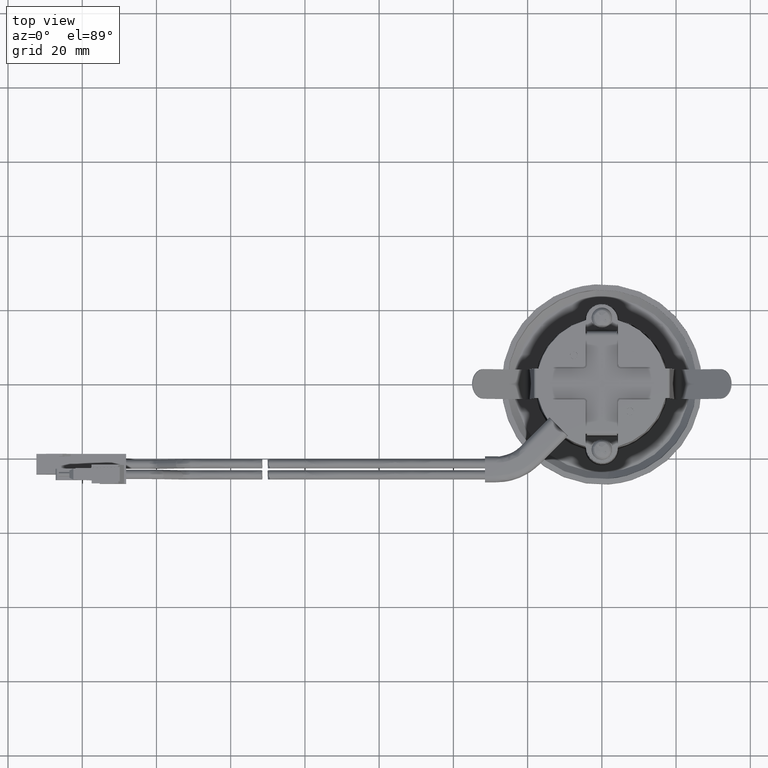
[diagram: clean part render]
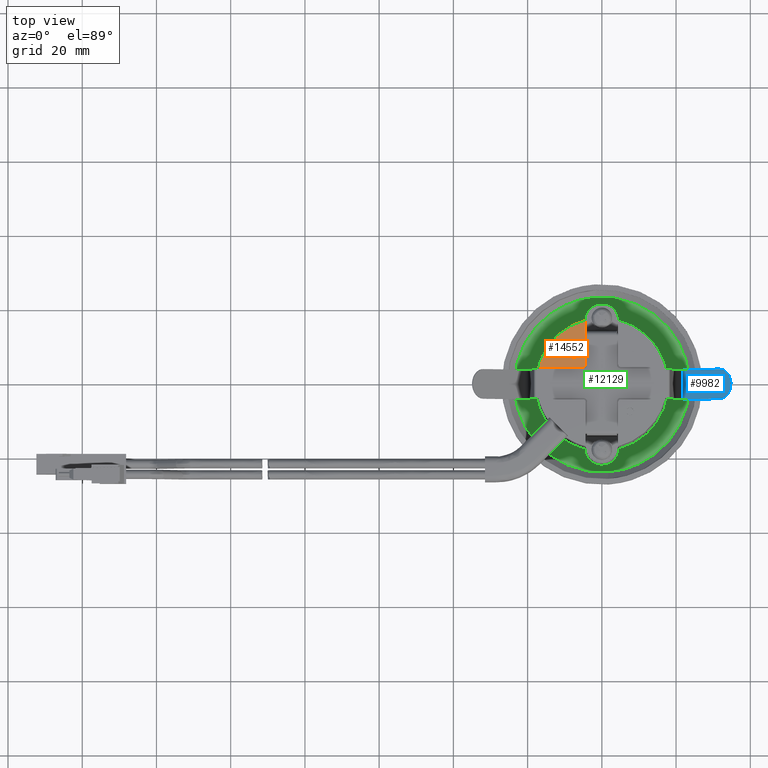
[diagram: same view with three faces highlighted in distinct colors, each labeled with its STEP entity id]
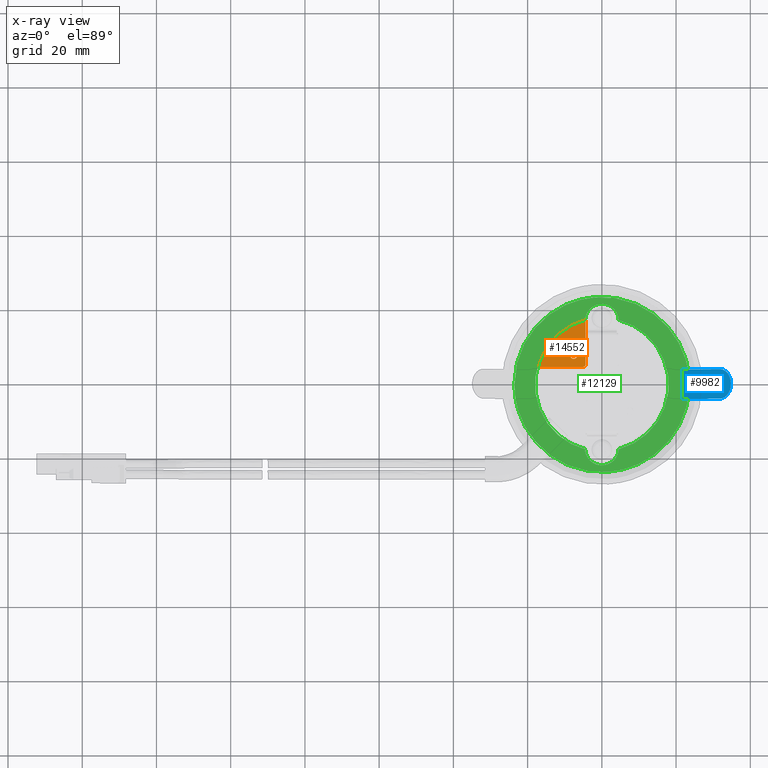
[diagram: x-ray of the same camera — body ghosted, the three highlighted faces saturated]
A machine part, top view with three faces highlighted in distinct colors.
The next image is the same camera in x-ray (body ghosted, the three faces saturated) — at least one of them is partly hidden behind the body in this view.
Their STEP definitions:

[orange] entity #14552 — the highlighted face is a freeform B-spline surface patch.
#13164=CARTESIAN_POINT('',(-4.399999999991501,5.000000000000970,21.599999999999248));
#13165=VERTEX_POINT('',#13164);
#13171=CARTESIAN_POINT('',(-4.999999999992530,4.399999999999936,21.599999999999248));
#13172=VERTEX_POINT('',#13171);
#13173=CARTESIAN_POINT('',(-4.999999999992530,4.399999999999936,21.599999999999248));
#13174=CARTESIAN_POINT('',(-4.399999999991509,4.399999999999938,21.599999999998747));
#13175=CARTESIAN_POINT('',(-4.399999999991508,5.000000000000970,21.599999999998751));
#13183=(BOUNDED_CURVE()B_SPLINE_CURVE(2,(#13173,#13174,#13175),.UNSPECIFIED.,.F.,.U.)CURVE()GEOMETRIC_REPRESENTATION_ITEM()QUASI_UNIFORM_CURVE()RATIONAL_B_SPLINE_CURVE((1.0,0.707106781186547,1.0))REPRESENTATION_ITEM(''));
#13184=EDGE_CURVE('',#13172,#13165,#13183,.T.);
#13490=CARTESIAN_POINT('',(-4.399999999991501,16.976985899317501,21.599999999999248));
#13491=VERTEX_POINT('',#13490);
#13492=CARTESIAN_POINT('',(-4.399999999991501,5.000000000000970,21.599999999999248));
#13493=CARTESIAN_POINT('',(-4.399999999991501,16.976985899317501,21.599999999999248));
#13494=QUASI_UNIFORM_CURVE('',1,(#13492,#13493),.UNSPECIFIED.,.F.,.U.);
#13495=EDGE_CURVE('',#13165,#13491,#13494,.T.);
#13533=CARTESIAN_POINT('',(-16.976985899309099,4.399999999999780,21.599999999999248));
#13534=VERTEX_POINT('',#13533);
#13535=CARTESIAN_POINT('',(-16.976985899309099,4.399999999999780,21.599999999999248));
#13536=CARTESIAN_POINT('',(-4.999999999992530,4.399999999999936,21.599999999999248));
#13537=QUASI_UNIFORM_CURVE('',1,(#13535,#13536),.UNSPECIFIED.,.F.,.U.);
#13538=EDGE_CURVE('',#13534,#13172,#13537,.T.);
#14420=CARTESIAN_POINT('',(-7.627101457603869,6.567897042375114,21.599999999998751));
#14421=VERTEX_POINT('',#14420);
#14427=CARTESIAN_POINT('',(-6.566052916317770,7.566031840689870,21.599999999998751));
#14428=VERTEX_POINT('',#14427);
#14429=CARTESIAN_POINT('',(-7.627101457603870,6.567897042375115,21.599999999998747));
#14430=CARTESIAN_POINT('',(-7.596605680494434,6.566031840689871,21.599999999998744));
#14431=CARTESIAN_POINT('',(-7.566052916317770,6.566031840689870,21.599999999998751));
#14432=CARTESIAN_POINT('',(-6.566052916317770,6.566031840689870,21.599999999998744));
#14433=CARTESIAN_POINT('',(-6.566052916317770,7.566031840689870,21.599999999998751));
#14441=(BOUNDED_CURVE()B_SPLINE_CURVE(2,(#14429,#14430,#14431,#14432,#14433),.UNSPECIFIED.,.F.,.U.)B_SPLINE_CURVE_WITH_KNOTS((3,2,3),(0.239332961939232,0.250000000000000,0.500000000000000),.UNSPECIFIED.)CURVE()GEOMETRIC_REPRESENTATION_ITEM()RATIONAL_B_SPLINE_CURVE((0.976072041024381,0.987502787548705,1.0,0.707106781186548,1.0))REPRESENTATION_ITEM(''));
#14442=EDGE_CURVE('',#14421,#14428,#14441,.T.);
#14444=CARTESIAN_POINT('',(-7.505004375031671,8.564166639004625,21.599999999998751));
#14445=VERTEX_POINT('',#14444);
#14446=CARTESIAN_POINT('',(-6.566052916317770,7.566031840689870,21.599999999998751));
#14447=CARTESIAN_POINT('',(-6.566052916317770,8.506737905942000,21.599999999998747));
#14448=CARTESIAN_POINT('',(-7.505004375031671,8.564166639004625,21.599999999998751));
#14456=(BOUNDED_CURVE()B_SPLINE_CURVE(2,(#14446,#14447,#14448),.UNSPECIFIED.,.F.,.U.)B_SPLINE_CURVE_WITH_KNOTS((3,3),(0.500000000000000,0.739332961939233),.UNSPECIFIED.)CURVE()GEOMETRIC_REPRESENTATION_ITEM()RATIONAL_B_SPLINE_CURVE((1.0,0.719603993637843,0.976072041024382))REPRESENTATION_ITEM(''));
#14457=EDGE_CURVE('',#14428,#14445,#14456,.T.);
#14489=CARTESIAN_POINT('',(-8.566052916317769,7.566031840689870,21.599999999998751));
#14490=VERTEX_POINT('',#14489);
#14491=CARTESIAN_POINT('',(-7.505004375031671,8.564166639004625,21.599999999998744));
#14492=CARTESIAN_POINT('',(-7.535500152141104,8.566031840689870,21.599999999998751));
#14493=CARTESIAN_POINT('',(-7.566052916317770,8.566031840689870,21.599999999998751));
#14494=CARTESIAN_POINT('',(-8.566052916317769,8.566031840689870,21.599999999998744));
#14495=CARTESIAN_POINT('',(-8.566052916317769,7.566031840689870,21.599999999998751));
#14503=(BOUNDED_CURVE()B_SPLINE_CURVE(2,(#14491,#14492,#14493,#14494,#14495),.UNSPECIFIED.,.F.,.U.)B_SPLINE_CURVE_WITH_KNOTS((3,2,3),(0.739332961939232,0.750000000000000,1.0),.UNSPECIFIED.)CURVE()GEOMETRIC_REPRESENTATION_ITEM()RATIONAL_B_SPLINE_CURVE((0.976072041024381,0.987502787548705,1.0,0.707106781186548,1.0))REPRESENTATION_ITEM(''));
#14504=EDGE_CURVE('',#14445,#14490,#14503,.T.);
#14506=CARTESIAN_POINT('',(-8.566052916317769,7.566031840689870,21.599999999998751));
#14507=CARTESIAN_POINT('',(-8.566052916317769,6.625325775437743,21.599999999998737));
#14508=CARTESIAN_POINT('',(-7.627101457603871,6.567897042375114,21.599999999998751));
#14516=(BOUNDED_CURVE()B_SPLINE_CURVE(2,(#14506,#14507,#14508),.UNSPECIFIED.,.F.,.U.)B_SPLINE_CURVE_WITH_KNOTS((3,3),(0.0,0.239332961939232),.UNSPECIFIED.)CURVE()GEOMETRIC_REPRESENTATION_ITEM()RATIONAL_B_SPLINE_CURVE((1.0,0.719603993637843,0.976072041024381))REPRESENTATION_ITEM(''));
#14517=EDGE_CURVE('',#14490,#14421,#14516,.T.);
#14523=CARTESIAN_POINT('',(-17.605206320603379,17.605206320611789,21.599999999998751));
#14524=CARTESIAN_POINT('',(-3.771779241356176,17.605206320611789,21.599999999998751));
#14525=CARTESIAN_POINT('',(-17.605206320603379,3.771779241364449,21.599999999998751));
#14526=CARTESIAN_POINT('',(-3.771779241356176,3.771779241364449,21.599999999998751));
#14527=B_SPLINE_SURFACE_WITH_KNOTS('',1,1,((#14523,#14525),(#14524,#14526)),.UNSPECIFIED.,.F.,.F.,.U.,(2,2),(2,2),(0.0,13.833427079247199),(0.0,13.833427079247340),.UNSPECIFIED.);
#14528=ORIENTED_EDGE('',*,*,#13538,.T.);
#14529=ORIENTED_EDGE('',*,*,#13184,.T.);
#14530=ORIENTED_EDGE('',*,*,#13495,.T.);
#14531=CARTESIAN_POINT('',(-4.399999999991501,16.976985899317501,21.599999999999248));
#14532=CARTESIAN_POINT('',(-14.388279604715807,14.388279604724136,21.599999999998751));
#14533=CARTESIAN_POINT('',(-16.976985899309131,4.399999999999800,21.599999999998751));
#14541=(BOUNDED_CURVE()B_SPLINE_CURVE(2,(#14531,#14532,#14533),.UNSPECIFIED.,.F.,.U.)CURVE()GEOMETRIC_REPRESENTATION_ITEM()QUASI_UNIFORM_CURVE()RATIONAL_B_SPLINE_CURVE((1.0,0.861893892314501,1.0))REPRESENTATION_ITEM(''));
#14542=EDGE_CURVE('',#13491,#13534,#14541,.T.);
#14543=ORIENTED_EDGE('',*,*,#14542,.T.);
#14544=EDGE_LOOP('',(#14528,#14529,#14530,#14543));
#14545=FACE_OUTER_BOUND('',#14544,.T.);
#14546=ORIENTED_EDGE('',*,*,#14457,.F.);
#14547=ORIENTED_EDGE('',*,*,#14442,.F.);
#14548=ORIENTED_EDGE('',*,*,#14517,.F.);
#14549=ORIENTED_EDGE('',*,*,#14504,.F.);
#14550=EDGE_LOOP('',(#14546,#14547,#14548,#14549));
#14551=FACE_BOUND('',#14550,.T.);
#14552=ADVANCED_FACE('',(#14545,#14551),#14527,.F.);

[blue] entity #9982 — the highlighted face is a freeform B-spline surface patch.
#8625=CARTESIAN_POINT('',(31.719833919201349,-3.999999999999800,12.186715824174140));
#8626=VERTEX_POINT('',#8625);
#8632=CARTESIAN_POINT('',(21.670459354844802,-3.999999999999780,3.754289333660160));
#8633=VERTEX_POINT('',#8632);
#8634=CARTESIAN_POINT('',(31.719833919201349,-3.999999999999800,12.186715824174140));
#8635=CARTESIAN_POINT('',(21.670459354844802,-3.999999999999780,3.754289333660160));
#8636=QUASI_UNIFORM_CURVE('',1,(#8634,#8635),.UNSPECIFIED.,.F.,.U.);
#8637=EDGE_CURVE('',#8626,#8633,#8636,.T.);
#9207=CARTESIAN_POINT('',(31.719833919201349,3.999999999998835,12.186715824174140));
#9208=VERTEX_POINT('',#9207);
#9209=CARTESIAN_POINT('',(31.719833919201349,-3.999999999999800,12.186715824174140));
#9210=CARTESIAN_POINT('',(32.045715037820372,-4.000203655979063,12.460162550614990));
#9211=CARTESIAN_POINT('',(32.697420480178359,-3.863042583480659,13.007008346933871));
#9212=CARTESIAN_POINT('',(33.463677517789357,-3.344167225349739,13.649974344580169));
#9213=CARTESIAN_POINT('',(34.023528434030460,-2.681425522662795,14.119745041912459));
#9214=CARTESIAN_POINT('',(34.466981278110190,-1.880980186307660,14.491846159824140));
#9215=CARTESIAN_POINT('',(34.732292499070930,-0.949016213472065,14.714468707479570));
#9216=CARTESIAN_POINT('',(34.806217488317067,0.032747247607722,14.776499138690831));
#9217=CARTESIAN_POINT('',(34.722966077353718,1.014486391139825,14.706642910456299));
#9218=CARTESIAN_POINT('',(34.430783078085589,1.968445020783507,14.461472263534461));
#9219=CARTESIAN_POINT('',(33.972435089846464,2.754452953827790,14.076872635651890));
#9220=CARTESIAN_POINT('',(33.457443810093153,3.334398451075207,13.644743642751431));
#9221=CARTESIAN_POINT('',(32.722379811053557,3.847427291620541,13.027951712265841));
#9222=CARTESIAN_POINT('',(32.095910725630020,4.000442337063271,12.502281733742420));
#9223=CARTESIAN_POINT('',(31.719833919201349,3.999999999998835,12.186715824174140));
#9224=B_SPLINE_CURVE_WITH_KNOTS('',3,(#9209,#9210,#9211,#9212,#9213,#9214,#9215,#9216,#9217,#9218,#9219,#9220,#9221,#9222,#9223),.UNSPECIFIED.,.F.,.U.,(4,1,1,1,1,1,1,1,1,1,1,1,4),(0.000000686626631,1.276199293866785,2.552606792289129,3.338043940655206,4.221677155183656,5.498025084810933,6.283343200150638,7.166909681309440,8.443182678078401,9.326831188038909,10.112259349022970,11.094048326722371,12.566685956253920),.UNSPECIFIED.);
#9225=EDGE_CURVE('',#8626,#9208,#9224,.T.);
#9944=CARTESIAN_POINT('',(21.670459354844802,3.999999999998785,3.754289333660160));
#9945=VERTEX_POINT('',#9944);
#9946=CARTESIAN_POINT('',(21.670459354844802,3.999999999998785,3.754289333660160));
#9947=CARTESIAN_POINT('',(21.670459354844802,-3.999999999999780,3.754289333660160));
#9948=QUASI_UNIFORM_CURVE('',1,(#9946,#9947),.UNSPECIFIED.,.F.,.U.);
#9949=EDGE_CURVE('',#9945,#8633,#9948,.T.);
#9967=CARTESIAN_POINT('',(21.015437441036699,-4.399599984494180,3.204660687370744));
#9968=CARTESIAN_POINT('',(35.439033957216687,-4.399599984494180,15.307495204347360));
#9969=CARTESIAN_POINT('',(21.015437441036699,4.399600199069936,3.204660687370744));
#9970=CARTESIAN_POINT('',(35.439033957216687,4.399600199069936,15.307495204347360));
#9971=B_SPLINE_SURFACE_WITH_KNOTS('',1,1,((#9967,#9969),(#9968,#9970)),.UNSPECIFIED.,.F.,.F.,.U.,(2,2),(2,2),(0.0,18.828668030609069),(0.0,8.799200183564116),.UNSPECIFIED.);
#9972=ORIENTED_EDGE('',*,*,#8637,.F.);
#9973=ORIENTED_EDGE('',*,*,#9225,.T.);
#9974=CARTESIAN_POINT('',(31.719833919201349,3.999999999998835,12.186715824174140));
#9975=CARTESIAN_POINT('',(21.670459354844802,3.999999999998785,3.754289333660160));
#9976=QUASI_UNIFORM_CURVE('',1,(#9974,#9975),.UNSPECIFIED.,.F.,.U.);
#9977=EDGE_CURVE('',#9208,#9945,#9976,.T.);
#9978=ORIENTED_EDGE('',*,*,#9977,.T.);
#9979=ORIENTED_EDGE('',*,*,#9949,.T.);
#9980=EDGE_LOOP('',(#9972,#9973,#9978,#9979));
#9981=FACE_OUTER_BOUND('',#9980,.T.);
#9982=ADVANCED_FACE('',(#9981),#9971,.T.);

[green] entity #12129 — the highlighted face is a freeform B-spline surface patch.
#11260=CARTESIAN_POINT('',(1.849961884302877,-23.505994456047990,2.000000000000902));
#11261=VERTEX_POINT('',#11260);
#11267=CARTESIAN_POINT('',(-23.578679656442031,0.0,2.000000000000680));
#11268=VERTEX_POINT('',#11267);
#11269=CARTESIAN_POINT('',(1.849961884302877,-23.505994456047990,2.000000000000903));
#11270=CARTESIAN_POINT('',(0.926408846802199,-23.578679656442201,2.000000000000680));
#11271=CARTESIAN_POINT('',(1.705303E-013,-23.578679656442201,2.000000000000680));
#11272=CARTESIAN_POINT('',(-23.578679656442027,-23.578679656442208,2.000000000000680));
#11273=CARTESIAN_POINT('',(-23.578679656442031,0.0,2.000000000000680));
#11281=(BOUNDED_CURVE()B_SPLINE_CURVE(2,(#11269,#11270,#11271,#11272,#11273),.UNSPECIFIED.,.F.,.U.)B_SPLINE_CURVE_WITH_KNOTS((3,2,3),(0.736331300632755,0.750000000000000,1.0),.UNSPECIFIED.)CURVE()GEOMETRIC_REPRESENTATION_ITEM()RATIONAL_B_SPLINE_CURVE((0.969723356171790,0.983986122581336,1.0,0.707106781186547,1.0))REPRESENTATION_ITEM(''));
#11282=EDGE_CURVE('',#11261,#11268,#11281,.T.);
#11284=CARTESIAN_POINT('',(-1.849961884302533,23.505994456047990,2.000000000000902));
#11285=VERTEX_POINT('',#11284);
#11286=CARTESIAN_POINT('',(-23.578679656442031,0.0,2.000000000000680));
#11287=CARTESIAN_POINT('',(-23.578679656442020,21.795907280268395,2.000000000000680));
#11288=CARTESIAN_POINT('',(-1.849961884302517,23.505994456047777,2.000000000000680));
#11296=(BOUNDED_CURVE()B_SPLINE_CURVE(2,(#11286,#11287,#11288),.UNSPECIFIED.,.F.,.U.)B_SPLINE_CURVE_WITH_KNOTS((3,3),(0.0,0.236331300632755),.UNSPECIFIED.)CURVE()GEOMETRIC_REPRESENTATION_ITEM()RATIONAL_B_SPLINE_CURVE((1.0,0.723120658605211,0.969723356171790))REPRESENTATION_ITEM(''));
#11297=EDGE_CURVE('',#11268,#11285,#11296,.T.);
#11331=CARTESIAN_POINT('',(23.578679656442372,0.0,2.000000000000680));
#11332=VERTEX_POINT('',#11331);
#11333=CARTESIAN_POINT('',(-1.849961884302533,23.505994456047983,2.000000000000901));
#11334=CARTESIAN_POINT('',(-0.926408846801859,23.578679656442205,2.000000000000680));
#11335=CARTESIAN_POINT('',(1.705303E-013,23.578679656442201,2.000000000000680));
#11336=CARTESIAN_POINT('',(23.578679656442379,23.578679656442208,2.000000000000680));
#11337=CARTESIAN_POINT('',(23.578679656442372,0.0,2.000000000000680));
#11345=(BOUNDED_CURVE()B_SPLINE_CURVE(2,(#11333,#11334,#11335,#11336,#11337),.UNSPECIFIED.,.F.,.U.)B_SPLINE_CURVE_WITH_KNOTS((3,2,3),(0.236331300632755,0.250000000000000,0.500000000000000),.UNSPECIFIED.)CURVE()GEOMETRIC_REPRESENTATION_ITEM()RATIONAL_B_SPLINE_CURVE((0.969723356171790,0.983986122581336,1.0,0.707106781186547,1.0))REPRESENTATION_ITEM(''));
#11346=EDGE_CURVE('',#11285,#11332,#11345,.T.);
#11348=CARTESIAN_POINT('',(23.578679656442372,0.0,2.000000000000680));
#11349=CARTESIAN_POINT('',(23.578679656442382,-21.795907280268398,2.000000000000680));
#11350=CARTESIAN_POINT('',(1.849961884302853,-23.505994456047773,2.000000000000680));
#11358=(BOUNDED_CURVE()B_SPLINE_CURVE(2,(#11348,#11349,#11350),.UNSPECIFIED.,.F.,.U.)B_SPLINE_CURVE_WITH_KNOTS((3,3),(0.500000000000000,0.736331300632755),.UNSPECIFIED.)CURVE()GEOMETRIC_REPRESENTATION_ITEM()RATIONAL_B_SPLINE_CURVE((1.0,0.723120658605211,0.969723356171790))REPRESENTATION_ITEM(''));
#11359=EDGE_CURVE('',#11332,#11261,#11358,.T.);
#11920=CARTESIAN_POINT('',(4.544832566101031,17.416787790697501,2.000000000000340));
#11921=VERTEX_POINT('',#11920);
#11929=CARTESIAN_POINT('',(-4.544832566081920,17.416787790696301,2.000000000000340));
#11930=VERTEX_POINT('',#11929);
#11931=CARTESIAN_POINT('',(4.544832566101031,17.416787790697501,2.000000000000340));
#11932=CARTESIAN_POINT('',(4.529380241185955,17.741226710308379,2.000000000000344));
#11933=CARTESIAN_POINT('',(4.406381217655636,18.530384109814701,2.000000000000339));
#11934=CARTESIAN_POINT('',(3.948349736681878,19.565946404636090,2.000000000000337));
#11935=CARTESIAN_POINT('',(3.264665155342783,20.413846102704500,2.000000000000347));
#11936=CARTESIAN_POINT('',(2.537670715113940,21.014057964369890,2.000000000000335));
#11937=CARTESIAN_POINT('',(1.543687814703840,21.541861926308790,2.000000000000344));
#11938=CARTESIAN_POINT('',(0.220495454144479,21.829842107219239,2.000000000000361));
#11939=CARTESIAN_POINT('',(-1.160343008513110,21.664556649523679,2.000000000000319));
#11940=CARTESIAN_POINT('',(-2.229602227708864,21.206431983779911,2.000000000000359));
#11941=CARTESIAN_POINT('',(-3.086239797825231,20.596537015711469,2.000000000000337));
#11942=CARTESIAN_POINT('',(-3.762939888408559,19.834188686724900,2.000000000000343));
#11943=CARTESIAN_POINT('',(-4.341554526829754,18.743873309642140,2.000000000000330));
#11944=CARTESIAN_POINT('',(-4.521091484404988,17.921585648589840,2.000000000000366));
#11945=CARTESIAN_POINT('',(-4.544832566081920,17.416787790696301,2.000000000000340));
#11946=B_SPLINE_CURVE_WITH_KNOTS('',3,(#11931,#11932,#11933,#11934,#11935,#11936,#11937,#11938,#11939,#11940,#11941,#11942,#11943,#11944,#11945),.UNSPECIFIED.,.F.,.U.,(4,1,1,1,1,1,1,1,1,1,1,1,4),(0.000000400431842,0.974466129359465,2.382280875798207,3.356920918259755,4.223264439788228,5.197880697542901,6.713908722102430,8.229770431486681,9.312735818296531,10.179042310990861,11.370263070816170,12.344893098200860,13.860833814180120),.UNSPECIFIED.);
#11947=EDGE_CURVE('',#11921,#11930,#11946,.T.);
#11978=CARTESIAN_POINT('',(-4.544832566082740,-17.416787790696500,2.000000000000340));
#11979=VERTEX_POINT('',#11978);
#11987=CARTESIAN_POINT('',(4.544832566100250,-17.416787790697150,2.000000000000340));
#11988=VERTEX_POINT('',#11987);
#11989=CARTESIAN_POINT('',(-4.544832566082740,-17.416787790696500,2.000000000000340));
#11990=CARTESIAN_POINT('',(-4.519503172459510,-17.957671084580980,2.000000000000336));
#11991=CARTESIAN_POINT('',(-4.337890641193212,-18.743644413021219,2.000000000000347));
#11992=CARTESIAN_POINT('',(-3.811422824243325,-19.735443995788561,2.000000000000334));
#11993=CARTESIAN_POINT('',(-3.264713156121259,-20.413872968027320,2.000000000000352));
#11994=CARTESIAN_POINT('',(-2.593602643115053,-20.967887550568658,2.000000000000324));
#11995=CARTESIAN_POINT('',(-1.740893891725619,-21.446849889831281,2.000000000000344));
#11996=CARTESIAN_POINT('',(-0.586378967900965,-21.786053493087259,2.000000000000350));
#11997=CARTESIAN_POINT('',(0.657582857559055,-21.756424302179958,2.000000000000310));
#11998=CARTESIAN_POINT('',(1.701207365299755,-21.449672146704270,2.000000000000409));
#11999=CARTESIAN_POINT('',(2.474693080466652,-21.050941878975760,2.000000000000278));
#12000=CARTESIAN_POINT('',(3.301453295823703,-20.401132128754170,2.000000000000369));
#12001=CARTESIAN_POINT('',(4.013095329769358,-19.473753859709820,2.000000000000334));
#12002=CARTESIAN_POINT('',(4.433056113581134,-18.387092922532698,2.000000000000340));
#12003=CARTESIAN_POINT('',(4.531091765839369,-17.705179288017568,2.000000000000340));
#12004=CARTESIAN_POINT('',(4.544832566100250,-17.416787790697150,2.000000000000340));
#12005=B_SPLINE_CURVE_WITH_KNOTS('',3,(#11989,#11990,#11991,#11992,#11993,#11994,#11995,#11996,#11997,#11998,#11999,#12000,#12001,#12002,#12003,#12004),.UNSPECIFIED.,.F.,.U.,(4,1,1,1,1,1,1,1,1,1,1,1,1,4),(0.000000400436972,1.624224407754110,2.382280875802653,3.356920918264191,4.223264439792748,4.981273213061956,6.280824992838790,7.796642163527486,8.663021697102163,9.529283154757536,10.395630430089771,11.803385219920999,12.994648977137571,13.860833814184680),.UNSPECIFIED.);
#12006=EDGE_CURVE('',#11979,#11988,#12005,.T.);
#12064=CARTESIAN_POINT('',(4.544832566100250,-17.416787790697150,2.000000000000340));
#12065=CARTESIAN_POINT('',(5.797935622664694,-17.090023117944909,2.000000000000337));
#12066=CARTESIAN_POINT('',(7.827076426852466,-16.318490813975590,2.000000000000345));
#12067=CARTESIAN_POINT('',(10.473634007650061,-14.721076751186850,2.000000000000338));
#12068=CARTESIAN_POINT('',(12.950136505150789,-12.668958024909630,2.000000000000338));
#12069=CARTESIAN_POINT('',(14.871584634642270,-10.309653448743310,2.000000000000349));
#12070=CARTESIAN_POINT('',(16.375626661032118,-7.612329648123986,2.000000000000317));
#12071=CARTESIAN_POINT('',(17.270623897973291,-5.304828615612852,2.000000000000354));
#12072=CARTESIAN_POINT('',(17.948050416396669,-2.289817305464198,2.000000000000333));
#12073=CARTESIAN_POINT('',(18.085702930194142,0.684176926852578,2.000000000000344));
#12074=CARTESIAN_POINT('',(17.657302535196909,3.870449552139204,2.000000000000351));
#12075=CARTESIAN_POINT('',(16.763689967320278,6.833751190958343,2.000000000000330));
#12076=CARTESIAN_POINT('',(15.196423413886279,9.859832528410649,2.000000000000346));
#12077=CARTESIAN_POINT('',(13.148846228158501,12.427256398377420,2.000000000000344));
#12078=CARTESIAN_POINT('',(10.597913459253800,14.677784360783720,2.000000000000304));
#12079=CARTESIAN_POINT('',(7.774777016777860,16.361936918419119,2.000000000000457));
#12080=CARTESIAN_POINT('',(5.559197333383628,17.152157770013542,2.000000000000176));
#12081=CARTESIAN_POINT('',(4.544832566101031,17.416787790697501,2.000000000000340));
#12082=B_SPLINE_CURVE_WITH_KNOTS('',3,(#12064,#12065,#12066,#12067,#12068,#12069,#12070,#12071,#12072,#12073,#12074,#12075,#12076,#12077,#12078,#12079,#12080,#12081),.UNSPECIFIED.,.F.,.U.,(4,1,1,1,1,1,1,1,1,1,1,1,1,1,1,4),(0.000000407826604,3.884976440981816,6.474950814837953,9.249919778842042,13.504952482028861,15.539971939722770,18.499929031935110,20.905003614156261,24.789747755772918,27.379852945259380,30.524801017903151,34.039802937827872,37.554808642404709,40.329848462417409,44.214777334004431,47.359750387201139),.UNSPECIFIED.);
#12083=EDGE_CURVE('',#11988,#11921,#12082,.T.);
#12091=CARTESIAN_POINT('',(25.934189662720829,-25.926992869130508,2.000000000000340));
#12092=CARTESIAN_POINT('',(-25.934190927579440,-25.926992869130508,2.000000000000340));
#12093=CARTESIAN_POINT('',(25.934189662720829,25.926993712369811,2.000000000000340));
#12094=CARTESIAN_POINT('',(-25.934190927579440,25.926993712369811,2.000000000000340));
#12095=B_SPLINE_SURFACE_WITH_KNOTS('',1,1,((#12091,#12093),(#12092,#12094)),.UNSPECIFIED.,.F.,.F.,.U.,(2,2),(2,2),(0.0,51.868380590300269),(0.0,51.853986581500322),.UNSPECIFIED.);
#12096=ORIENTED_EDGE('',*,*,#11282,.F.);
#12097=ORIENTED_EDGE('',*,*,#11359,.F.);
#12098=ORIENTED_EDGE('',*,*,#11346,.F.);
#12099=ORIENTED_EDGE('',*,*,#11297,.F.);
#12100=EDGE_LOOP('',(#12096,#12097,#12098,#12099));
#12101=FACE_OUTER_BOUND('',#12100,.T.);
#12102=CARTESIAN_POINT('',(-4.544832566081920,17.416787790696301,2.000000000000340));
#12103=CARTESIAN_POINT('',(-5.320484622614342,17.214401264764110,2.000000000000341));
#12104=CARTESIAN_POINT('',(-7.079269231819148,16.627581734427700,2.000000000000338));
#12105=CARTESIAN_POINT('',(-9.444862735516386,15.407394412420350,2.000000000000347));
#12106=CARTESIAN_POINT('',(-11.791319784990851,13.695061173828270,2.000000000000337));
#12107=CARTESIAN_POINT('',(-14.157336046143509,11.333646734160849,2.000000000000344));
#12108=CARTESIAN_POINT('',(-15.949776189743419,8.570989236197436,2.000000000000344));
#12109=CARTESIAN_POINT('',(-17.101981793873989,5.771344239419335,2.000000000000337));
#12110=CARTESIAN_POINT('',(-17.822742617456850,3.085231944873443,2.000000000000334));
#12111=CARTESIAN_POINT('',(-18.109050171723389,-0.001076687664021,2.000000000000374));
#12112=CARTESIAN_POINT('',(-17.759073285501650,-3.574274754866822,2.000000000000321));
#12113=CARTESIAN_POINT('',(-16.863662936730751,-6.543481494548234,2.000000000000346));
#12114=CARTESIAN_POINT('',(-15.540245853495129,-9.197505483277412,2.000000000000340));
#12115=CARTESIAN_POINT('',(-14.035894663425450,-11.390700450700219,2.000000000000342));
#12116=CARTESIAN_POINT('',(-12.116555817164279,-13.407851748618610,2.000000000000333));
#12117=CARTESIAN_POINT('',(-10.107929597768520,-14.954110437451449,2.000000000000336));
#12118=CARTESIAN_POINT('',(-7.653138947518925,-16.384615317149990,2.000000000000400));
#12119=CARTESIAN_POINT('',(-5.797937612873199,-17.090023346243051,2.000000000000222));
#12120=CARTESIAN_POINT('',(-4.544832566082740,-17.416787790696500,2.000000000000340));
#12121=B_SPLINE_CURVE_WITH_KNOTS('',3,(#12102,#12103,#12104,#12105,#12106,#12107,#12108,#12109,#12110,#12111,#12112,#12113,#12114,#12115,#12116,#12117,#12118,#12119,#12120),.UNSPECIFIED.,.F.,.U.,(4,1,1,1,1,1,1,1,1,1,1,1,1,1,1,1,4),(0.000000407819016,2.404879243758813,5.549893691430128,7.954908391607702,11.099935264823010,15.539971939720539,17.759922948648349,20.165000225758000,23.864781427600590,27.009751476999821,30.894777468744429,33.114822926955682,35.889817748208607,38.849810514863243,41.439797044948371,43.474777017472917,47.359750387202872),.UNSPECIFIED.);
#12122=EDGE_CURVE('',#11930,#11979,#12121,.T.);
#12123=ORIENTED_EDGE('',*,*,#12122,.F.);
#12124=ORIENTED_EDGE('',*,*,#11947,.F.);
#12125=ORIENTED_EDGE('',*,*,#12083,.F.);
#12126=ORIENTED_EDGE('',*,*,#12006,.F.);
#12127=EDGE_LOOP('',(#12123,#12124,#12125,#12126));
#12128=FACE_BOUND('',#12127,.T.);
#12129=ADVANCED_FACE('',(#12101,#12128),#12095,.F.);